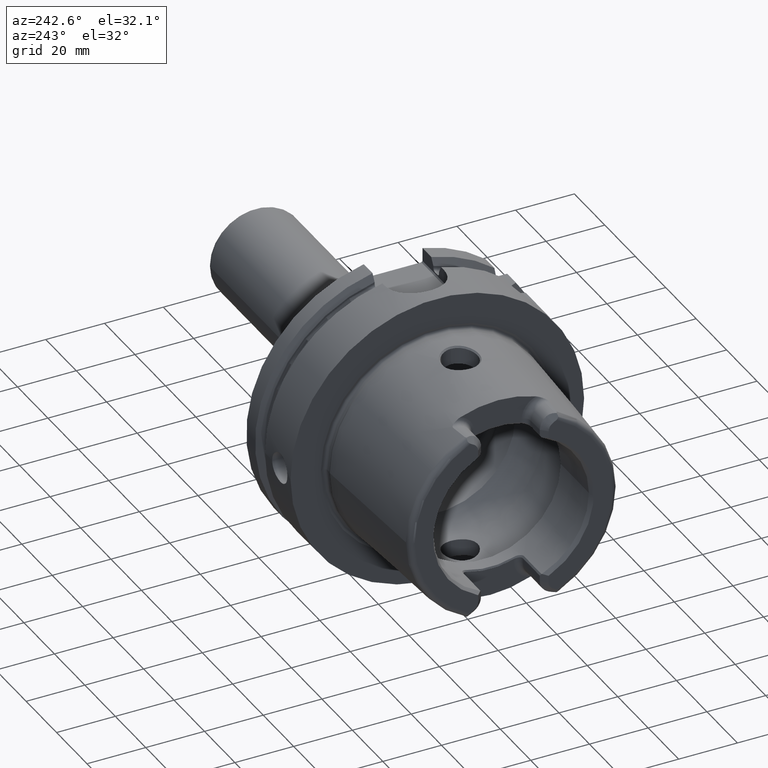
[diagram: clean part render]
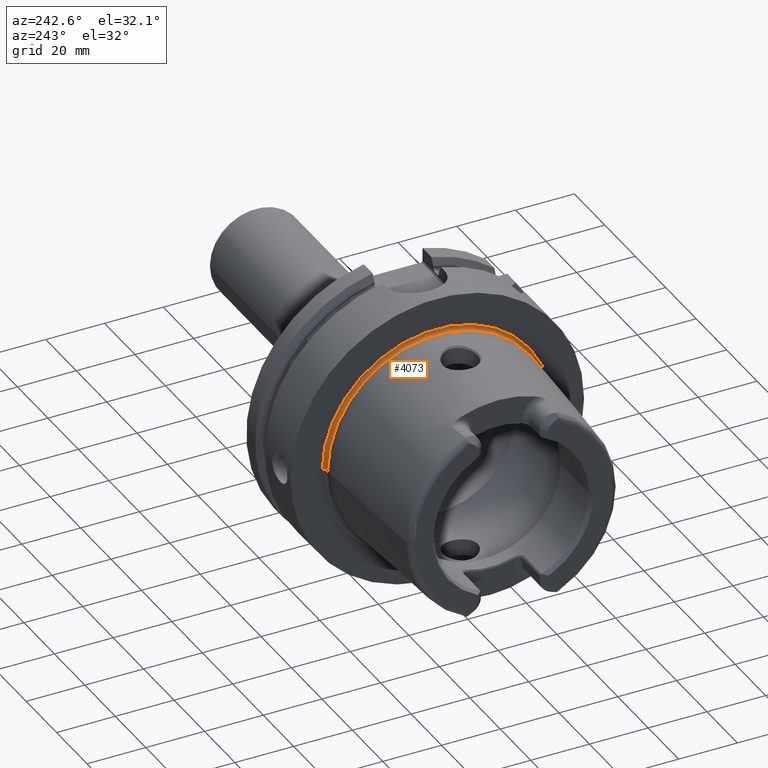
[diagram: same view with one face highlighted and labeled with its STEP entity id]
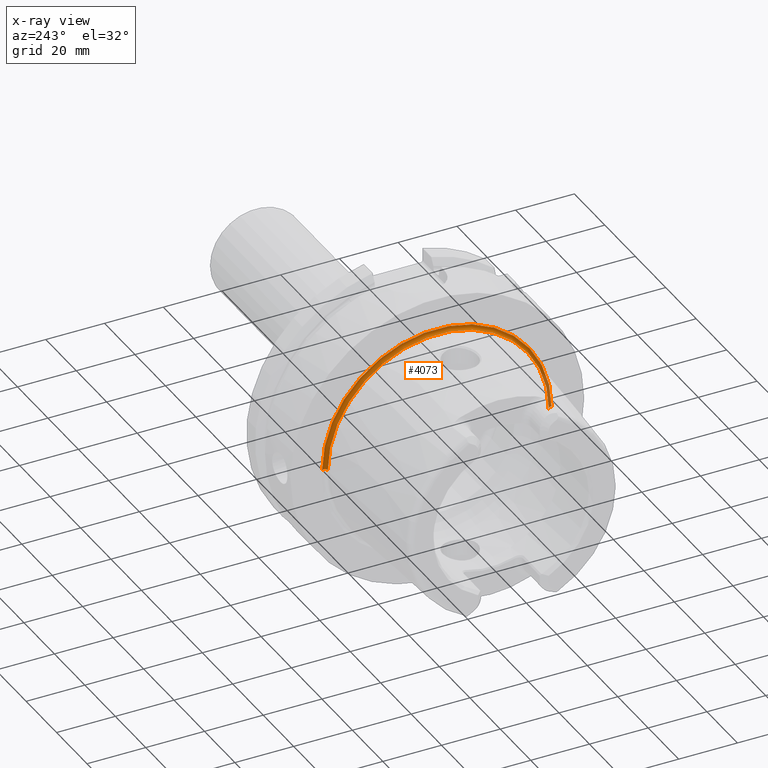
[diagram: x-ray of the same camera — body ghosted, the highlighted face saturated]
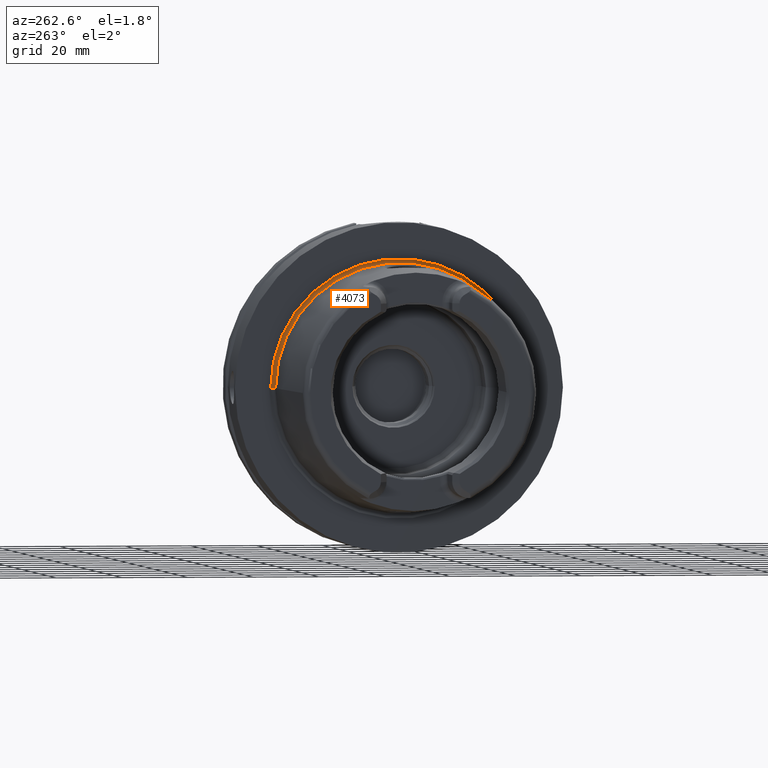
[diagram: same view with one face highlighted and labeled with its STEP entity id]
A machine part, auxiliary view. The second image highlights one B-rep face of the part: STEP entity #4073.
The next image is the same camera in x-ray: the body ghosted, the highlighted face saturated — about 6% of this face is hidden behind the body in this view.
A second angle (auxiliary view) of the same face is appended — the face is thin or edge-on in the first view.
In plain terms, the highlighted toroidal blend (fillet) surface has major radius 38.6823 mm and minor (blend) radius 1 mm.
Its self-contained STEP definition (entity closure, byte-faithful):
#872=CARTESIAN_POINT('',(-7.005712886803E-1,0.E0,0.E0));
#873=DIRECTION('',(-1.E0,0.E0,0.E0));
#874=DIRECTION('',(0.E0,-1.E0,0.E0));
#875=AXIS2_PLACEMENT_3D('',#872,#873,#874);
#877=CARTESIAN_POINT('',(2.298462793018E-1,0.E0,0.E0));
#878=DIRECTION('',(-1.E0,0.E0,0.E0));
#879=DIRECTION('',(0.E0,-1.E0,0.E0));
#880=AXIS2_PLACEMENT_3D('',#877,#878,#879);
#882=CARTESIAN_POINT('',(-7.005712886803E-1,3.868225E1,0.E0));
#883=DIRECTION('',(0.E0,0.E0,-1.E0));
#884=DIRECTION('',(9.304175679820E-1,3.665012267243E-1,0.E0));
#885=AXIS2_PLACEMENT_3D('',#882,#883,#884);
#887=CARTESIAN_POINT('',(-7.005712886803E-1,-3.868225E1,0.E0));
#888=DIRECTION('',(0.E0,0.E0,1.E0));
#889=DIRECTION('',(9.304175679820E-1,-3.665012267243E-1,0.E0));
#890=AXIS2_PLACEMENT_3D('',#887,#888,#889);
#2697=CARTESIAN_POINT('',(2.298462793018E-1,-3.904875122672E1,0.E0));
#2698=CARTESIAN_POINT('',(-7.005712886803E-1,-3.768225E1,0.E0));
#2699=VERTEX_POINT('',#2697);
#2700=VERTEX_POINT('',#2698);
#2705=CARTESIAN_POINT('',(2.298462793018E-1,3.904875122672E1,0.E0));
#2706=CARTESIAN_POINT('',(-7.005712886803E-1,3.768225E1,0.E0));
#2707=VERTEX_POINT('',#2705);
#2708=VERTEX_POINT('',#2706);
#4059=CARTESIAN_POINT('',(-7.005712886803E-1,0.E0,0.E0));
#4060=DIRECTION('',(-1.E0,0.E0,0.E0));
#4061=DIRECTION('',(0.E0,1.E0,0.E0));
#4062=AXIS2_PLACEMENT_3D('',#4059,#4060,#4061);
#4063=TOROIDAL_SURFACE('',#4062,3.868225E1,1.E0);
#4065=ORIENTED_EDGE('',*,*,#4064,.T.);
#4066=ORIENTED_EDGE('',*,*,#4054,.T.);
#4068=ORIENTED_EDGE('',*,*,#4067,.F.);
#4070=ORIENTED_EDGE('',*,*,#4069,.F.);
#4071=EDGE_LOOP('',(#4065,#4066,#4068,#4070));
#4072=FACE_OUTER_BOUND('',#4071,.F.);
#4073=ADVANCED_FACE('',(#4072),#4063,.F.);
#876=CIRCLE('',#875,3.768225E1);
#881=CIRCLE('',#880,3.904875122672E1);
#886=CIRCLE('',#885,1.E0);
#891=CIRCLE('',#890,1.E0);
#4054=EDGE_CURVE('',#2700,#2708,#876,.T.);
#4064=EDGE_CURVE('',#2699,#2700,#891,.T.);
#4067=EDGE_CURVE('',#2707,#2708,#886,.T.);
#4069=EDGE_CURVE('',#2699,#2707,#881,.T.);